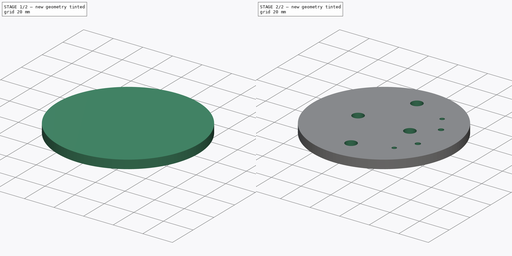
[diagram: build sequence overview — one tinted view per stage of 2, left to right]
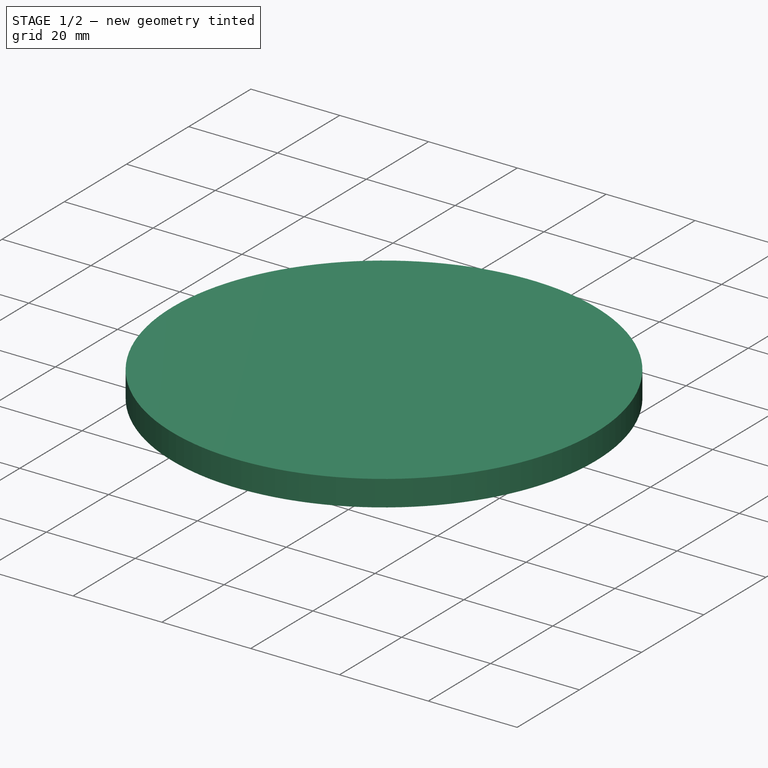
[diagram: stage 1 of 2 — iso view after this stage's code; geometry added in this stage tinted green]
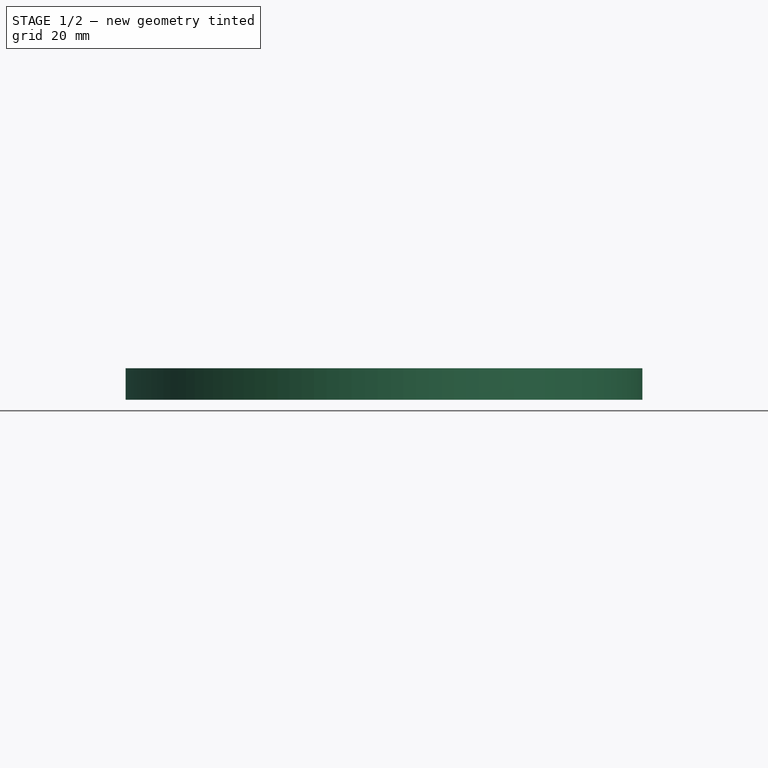
[diagram: stage 1 of 2 — front view after this stage's code; geometry added in this stage tinted green]
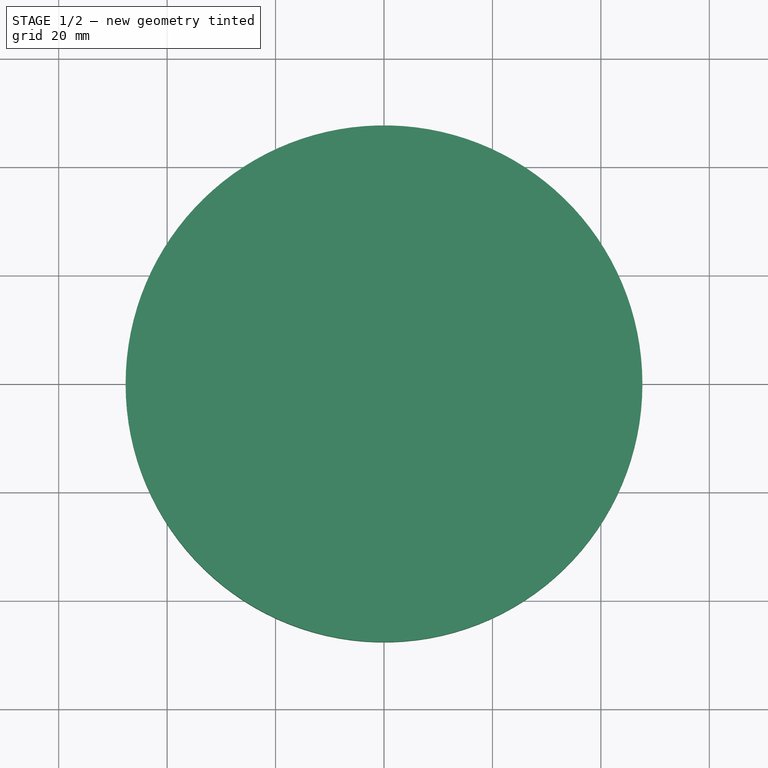
[diagram: stage 1 of 2 — top view after this stage's code; geometry added in this stage tinted green]
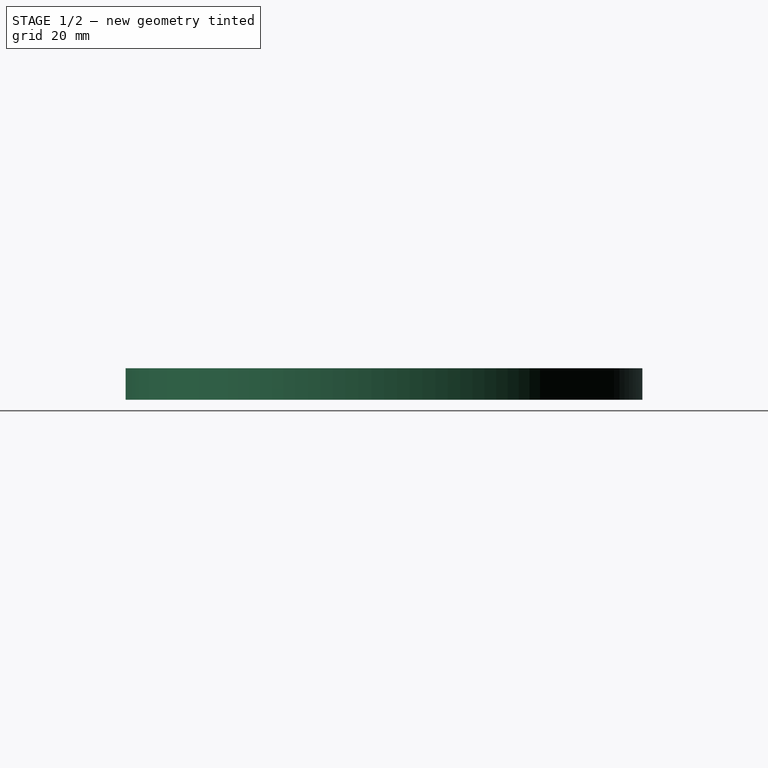
[diagram: stage 1 of 2 — right view after this stage's code; geometry added in this stage tinted green]
FCSTD DOCUMENT  (FreeCAD 1.0R39285 (Git))
Label: BulkheadInner
License: All rights reserved
LicenseURL: https://en.wikipedia.org/wiki/All_rights_reserved
objects: Sketcher::SketchObject×2, App::Part×1, PartDesign::Pad×1, PartDesign::Pocket×1, PartDesign::Body×1
note: 11 computed .brp shape members not serialized (recipe doc carries the construction recipe); baked Part::Feature solids carry a one-line shape summary decoded from their .brp
EXTERNAL_REF file=Variables.FCStd obj=VarSet

FEATURE [App::Part] Part
  Origin = -> Origin
FEATURE [Sketcher::SketchObject] Sketch
  ArcFitTolerance = 1e-06
  AttachmentSupport = -> [XY_Plane001]
  FullyConstrained = true
  MakeInternals = false
  MapMode = 5
  expr: Constraints[1] = Variables#VarSet.Avbay_ID
  sketch-geometry (1):
    g0: Circle CenterX=0 CenterY=0 CenterZ=0 NormalX=0 NormalY=0 NormalZ=1 AngleXU=0 Radius=47.66
  constraints (2):
    c: Coincident(g0,g-1)
    c: Diameter(g0) = 95.32
FEATURE [PartDesign::Pad] Pad
  Direction = (0,0,1)
  Length = 5.8
  Length2 = 10
  Profile = -> Sketch
  ReferenceAxis = -> Sketch [N_Axis]
  Refine = true
  Suppressed = false
  Type = 0
  expr: Length = Variables#VarSet.BB_quarter_inch_thickness
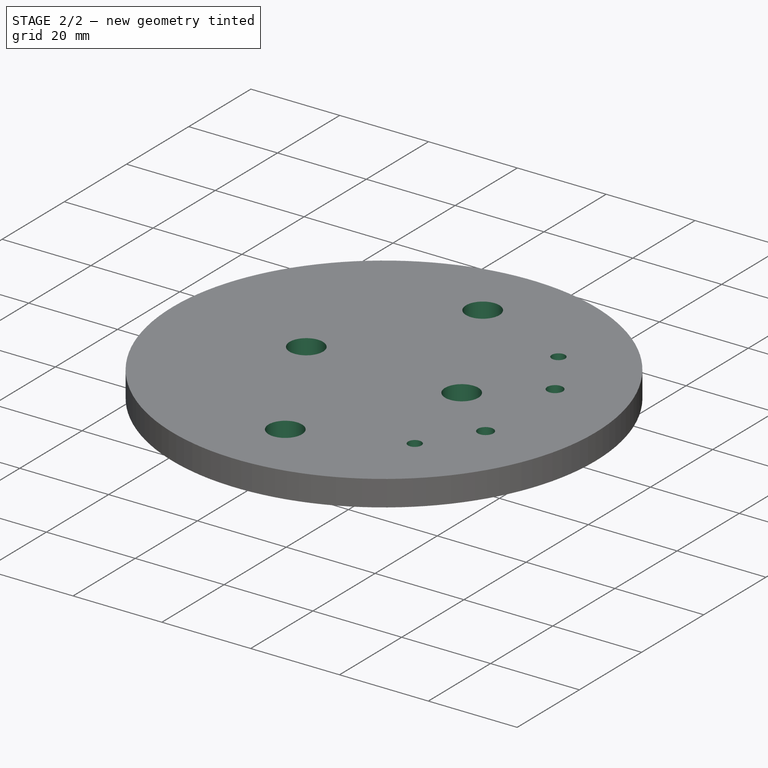
[diagram: stage 2 of 2 — iso view after this stage's code; geometry added in this stage tinted green]
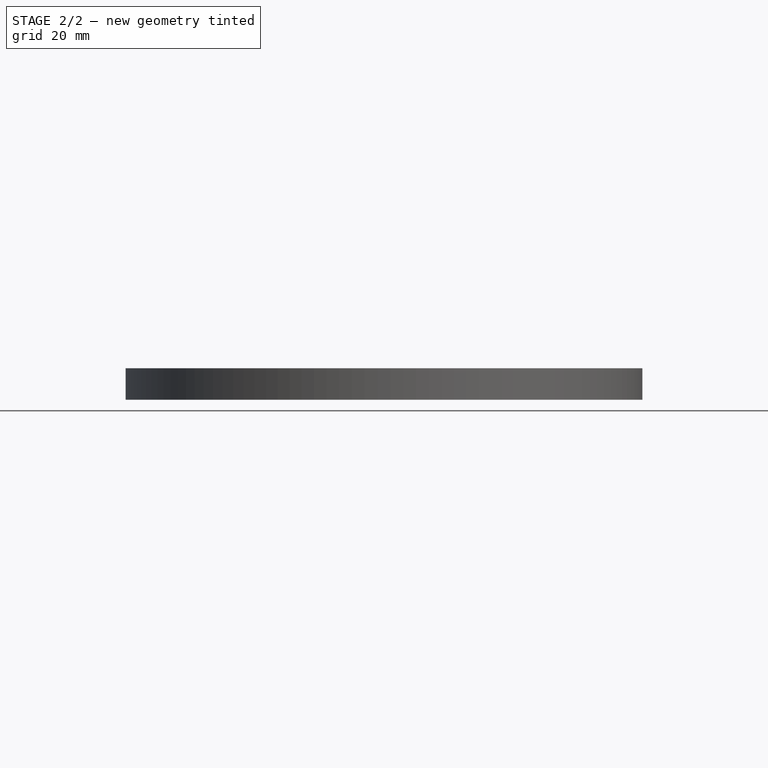
[diagram: stage 2 of 2 — front view after this stage's code; geometry added in this stage tinted green]
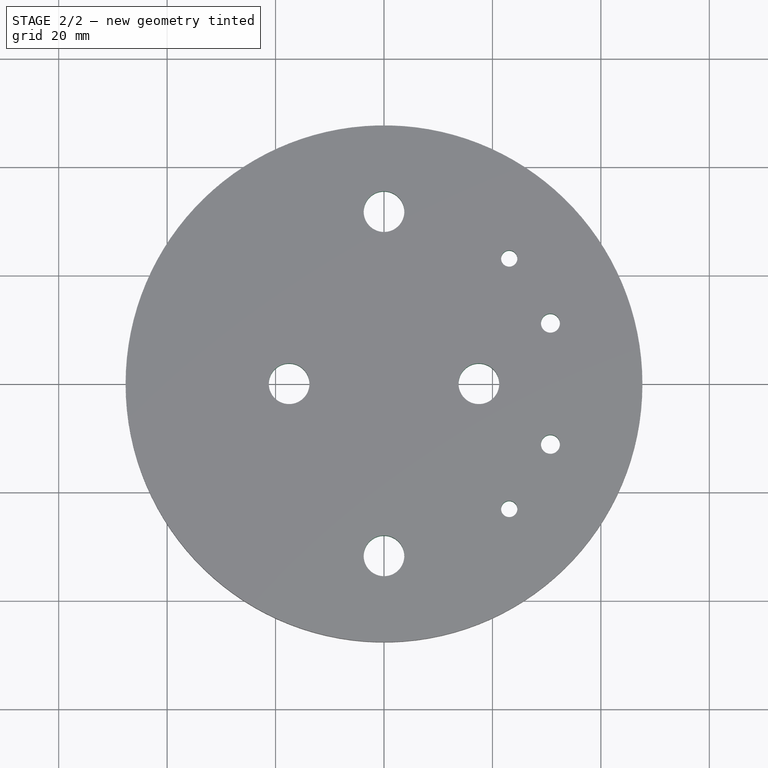
[diagram: stage 2 of 2 — top view after this stage's code; geometry added in this stage tinted green]
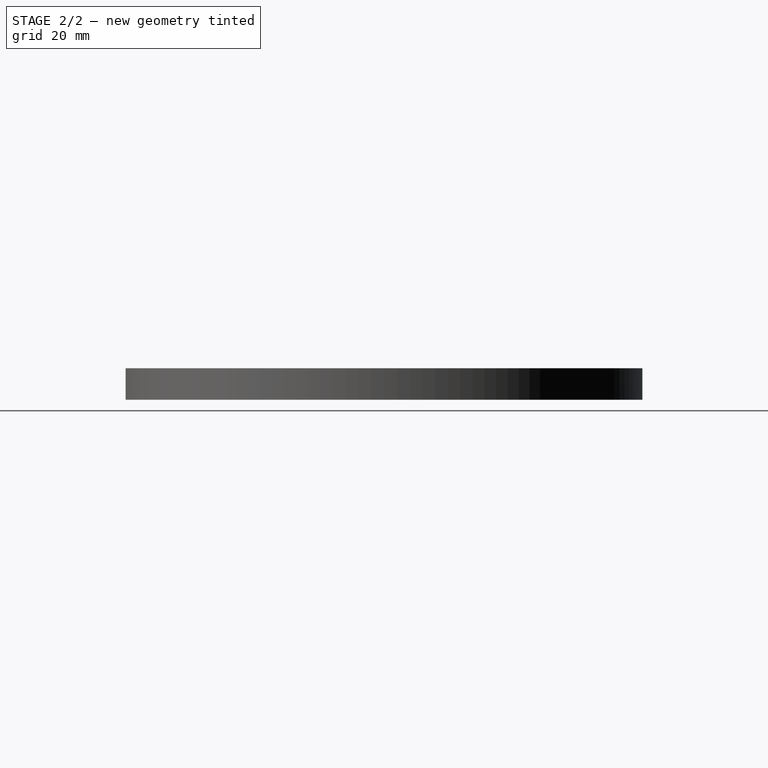
[diagram: stage 2 of 2 — right view after this stage's code; geometry added in this stage tinted green]
FEATURE [Sketcher::SketchObject] Sketch001
  ArcFitTolerance = 1e-06
  AttachmentSupport = -> [Pad]
  FullyConstrained = true
  MakeInternals = false
  MapMode = 5
  Placement = pos=(0,0,5.8) rot=(0,0,1;0rad)
  expr: Constraints[10] = Variables#VarSet.ChargewellScrewDiameter
  expr: Constraints[16] = Variables#VarSet.Avbay_OD / 3
  expr: Constraints[17] = Variables#VarSet.M3HoleDiameter
  expr: Constraints[1] = Variables#VarSet.ThreadedRodDiameter
  expr: Constraints[21] = Variables#VarSet.Avbay_OD / 3
  expr: Constraints[6] = Variables#VarSet.UboltHoleDiameter
  expr: Constraints[8] = Variables#VarSet.UboltCenterToCenter
  expr: Constraints[9] = Variables#VarSet.ThreadedRodCenterToCenter
  sketch-geometry (10):
    g0: Circle CenterX=0 CenterY=31.75 CenterZ=0 NormalX=0 NormalY=0 NormalZ=1 AngleXU=0 Radius=3.75
    g1: Circle CenterX=0 CenterY=-31.75 CenterZ=0 NormalX=0 NormalY=0 NormalZ=1 AngleXU=0 Radius=3.75
    g2: Circle CenterX=-17.5 CenterY=0 CenterZ=0 NormalX=0 NormalY=0 NormalZ=1 AngleXU=0 Radius=3.75
    g3: Circle CenterX=17.5 CenterY=0 CenterZ=0 NormalX=0 NormalY=0 NormalZ=1 AngleXU=0 Radius=3.75
    g4: Circle CenterX=23.0988 CenterY=23.0988 CenterZ=0 NormalX=0 NormalY=0 NormalZ=1 AngleXU=0 Radius=1.5
    g5: Circle CenterX=23.0988 CenterY=-23.0988 CenterZ=0 NormalX=0 NormalY=0 NormalZ=1 AngleXU=0 Radius=1.5
    g6: LineSegment [constr] StartX=0 StartY=0 StartZ=0 EndX=23.0988 EndY=23.0988 EndZ=0
    g7: Circle CenterX=30.6966 CenterY=11.1727 CenterZ=0 NormalX=0 NormalY=0 NormalZ=1 AngleXU=0 Radius=1.75
    g8: Circle CenterX=30.6966 CenterY=-11.1727 CenterZ=0 NormalX=0 NormalY=0 NormalZ=1 AngleXU=0 Radius=1.75
    g9: LineSegment [constr] StartX=0 StartY=0 StartZ=0 EndX=30.6966 EndY=11.1727 EndZ=0
  constraints (24):
    c: PointOnObject(g0,g-2)
    c: Diameter(g0) = 7.5
    c: Equal(g0,g1)
    c: Symmetric(g0,g1,g-1)
    c: PointOnObject(g2,g-1)
    c: Symmetric(g2,g3,g-1)
    c: Diameter(g2) = 7.5
    c: Equal(g2,g3)
    c: DistanceX(g2,g3) = 35
    c: DistanceY(g1,g0) = 63.5
    c: Diameter(g4) = 3
    c: Equal(g4,g5)
    c: Symmetric(g4,g5,g-1)
    c: Coincident(g6,g-1)
    c: Angle(g-1,g6) = 0.785398
    c: Coincident(g6,g4)
    c: Distance(g6,g6) = 32.6667
    c: Diameter(g7) = 3.5
    c: Equal(g7,g8)
    c: Coincident(g9,g6)
    c: Coincident(g9,g7)
    c: Distance(g9,g9) = 32.6667
    c: Symmetric(g7,g8,g-1)
    c: Angle(g-1,g9) = 0.349066
FEATURE [PartDesign::Pocket] Pocket
  BaseFeature = -> Pad
  Direction = (0,0,-1)
  Length = 5
  Length2 = 5
  Profile = -> Sketch001
  ReferenceAxis = -> Sketch001 [N_Axis]
  Refine = true
  Suppressed = false
  Type = 1
FEATURE [PartDesign::Body] Body
  AllowCompound = false
  Group = -> [Sketch,Pad,Sketch001,Pocket]
  Origin = -> Origin001
  Tip = -> Pocket
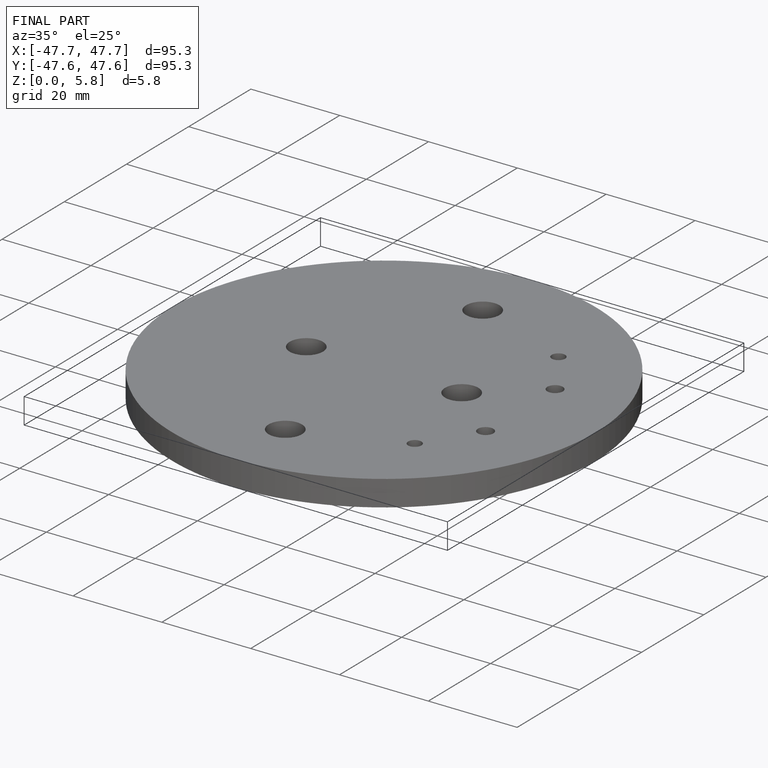
[diagram: finished part — iso view with bounding-box wireframe]
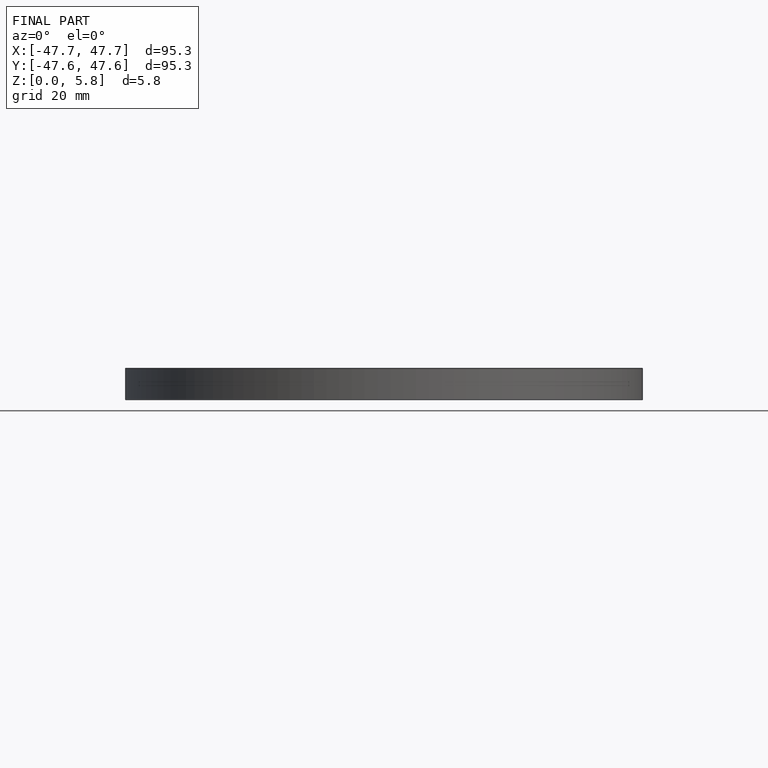
[diagram: finished part — front view with bounding-box wireframe]
